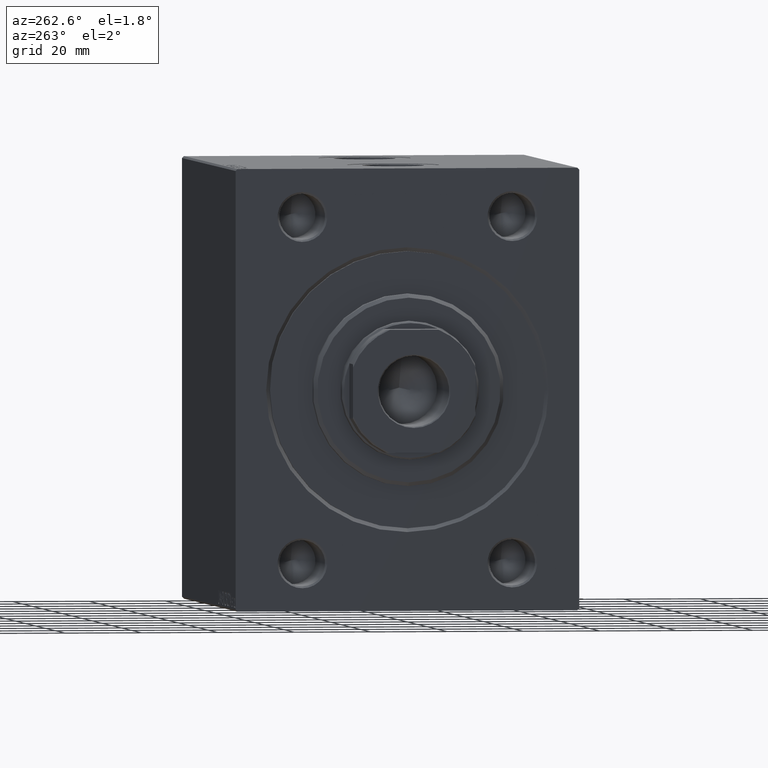
[diagram: clean part render]
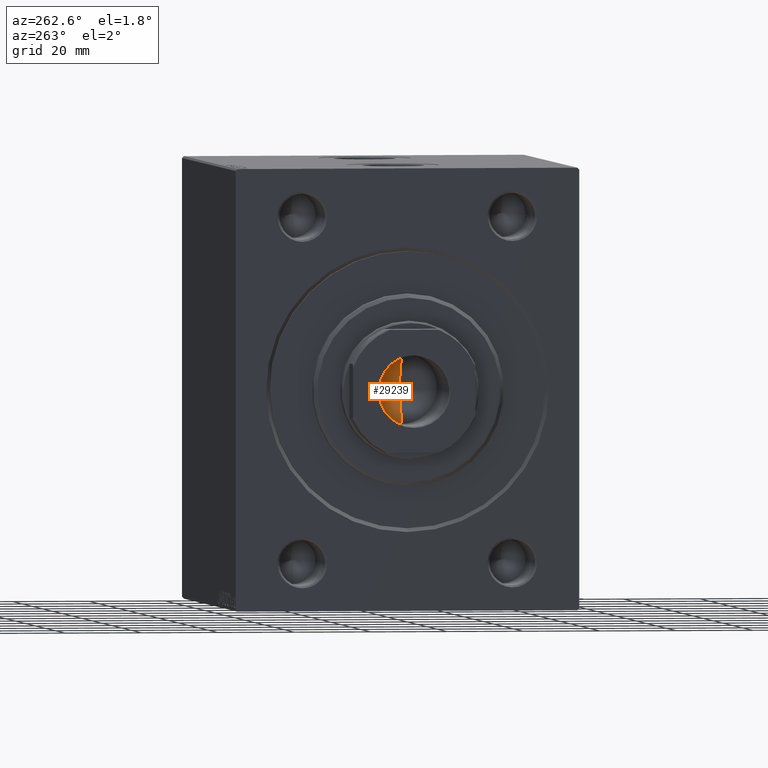
[diagram: same view with one face highlighted and labeled with its STEP entity id]
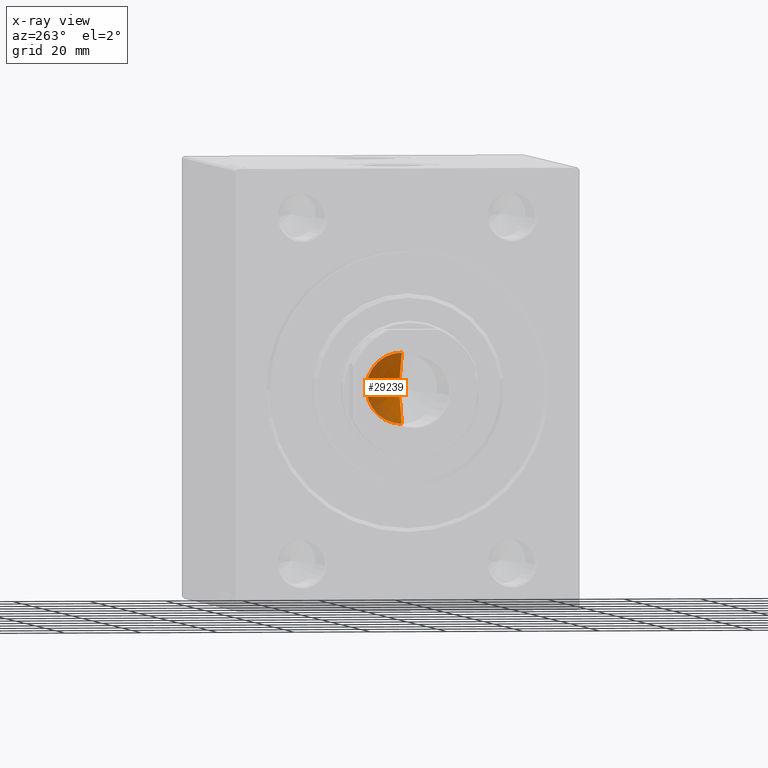
[diagram: x-ray of the same camera — body ghosted, the highlighted face saturated]
A machine part, auxiliary view. The second image highlights one B-rep face of the part: STEP entity #29239.
The next image is the same camera in x-ray: the body ghosted, the highlighted face saturated — about 46% of this face is hidden behind the body in this view.
In plain terms, the highlighted conical surface has half-angle 59 deg.
Its self-contained STEP definition (entity closure, byte-faithful):
#423 = EDGE_CURVE ( 'NONE', #38898, #7264, #22683, .T. ) ;
#2821 = CIRCLE ( 'NONE', #8538, 9.249999999999994671 ) ;
#3136 = CARTESIAN_POINT ( 'NONE',  ( 0.000000000000000000, 0.000000000000000000, 79.00000000000001421 ) ) ;
#5632 = DIRECTION ( 'NONE',  ( 0.8571673007021113344, 0.000000000000000000, 0.5150380749100558209 ) ) ;
#5713 = VECTOR ( 'NONE', #25692, 1000.000000000000000 ) ;
#7264 = VERTEX_POINT ( 'NONE', #42394 ) ;
#7801 = CONICAL_SURFACE ( 'NONE', #37830, 9.249999999999994671, 1.029744258676652535 ) ;
#8461 = EDGE_LOOP ( 'NONE', ( #22877, #28709, #37385 ) ) ;
#8538 = AXIS2_PLACEMENT_3D ( 'NONE', #10379, #17326, #31005 ) ;
#9290 = CARTESIAN_POINT ( 'NONE',  ( -9.249999999999994671, 1.132798289211300909E-15, 79.00000000000001421 ) ) ;
#9845 = DIRECTION ( 'NONE',  ( -0.000000000000000000, -0.000000000000000000, 1.000000000000000000 ) ) ;
#10379 = CARTESIAN_POINT ( 'NONE',  ( 0.000000000000000000, 0.000000000000000000, 79.00000000000001421 ) ) ;
#11824 = CARTESIAN_POINT ( 'NONE',  ( -6.793016015247754405E-15, 0.000000000000000000, 73.44203927399506426 ) ) ;
#17245 = EDGE_CURVE ( 'NONE', #38898, #28362, #32838, .T. ) ;
#17326 = DIRECTION ( 'NONE',  ( -0.000000000000000000, -0.000000000000000000, 1.000000000000000000 ) ) ;
#22683 = LINE ( 'NONE', #36319, #29982 ) ;
#22877 = ORIENTED_EDGE ( 'NONE', *, *, #17245, .F. ) ;
#23542 = DIRECTION ( 'NONE',  ( 1.000000000000000000, 0.000000000000000000, 0.000000000000000000 ) ) ;
#25692 = DIRECTION ( 'NONE',  ( -0.8571673007021113344, 1.049727191138617463E-16, 0.5150380749100558209 ) ) ;
#26688 = FACE_OUTER_BOUND ( 'NONE', #8461, .T. ) ;
#28362 = VERTEX_POINT ( 'NONE', #32083 ) ;
#28709 = ORIENTED_EDGE ( 'NONE', *, *, #423, .T. ) ;
#29239 = ADVANCED_FACE ( 'NONE', ( #26688 ), #7801, .F. ) ;
#29982 = VECTOR ( 'NONE', #5632, 1000.000000000000000 ) ;
#30913 = EDGE_CURVE ( 'NONE', #7264, #28362, #2821, .T. ) ;
#31005 = DIRECTION ( 'NONE',  ( 1.000000000000000000, 0.000000000000000000, 0.000000000000000000 ) ) ;
#32083 = CARTESIAN_POINT ( 'NONE',  ( -9.249999999999994671, 1.132798289211300909E-15, 79.00000000000001421 ) ) ;
#32838 = LINE ( 'NONE', #9290, #5713 ) ;
#36319 = CARTESIAN_POINT ( 'NONE',  ( 9.249999999999994671, 0.000000000000000000, 79.00000000000001421 ) ) ;
#37385 = ORIENTED_EDGE ( 'NONE', *, *, #30913, .T. ) ;
#37830 = AXIS2_PLACEMENT_3D ( 'NONE', #3136, #9845, #23542 ) ;
#38898 = VERTEX_POINT ( 'NONE', #11824 ) ;
#42394 = CARTESIAN_POINT ( 'NONE',  ( 9.249999999999994671, 0.000000000000000000, 79.00000000000001421 ) ) ;